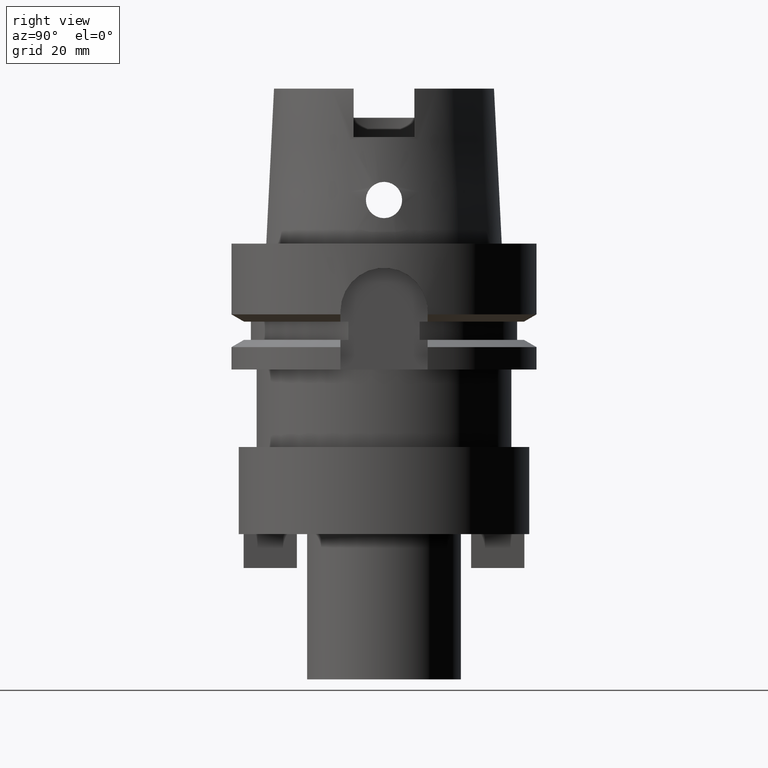
[diagram: clean part render]
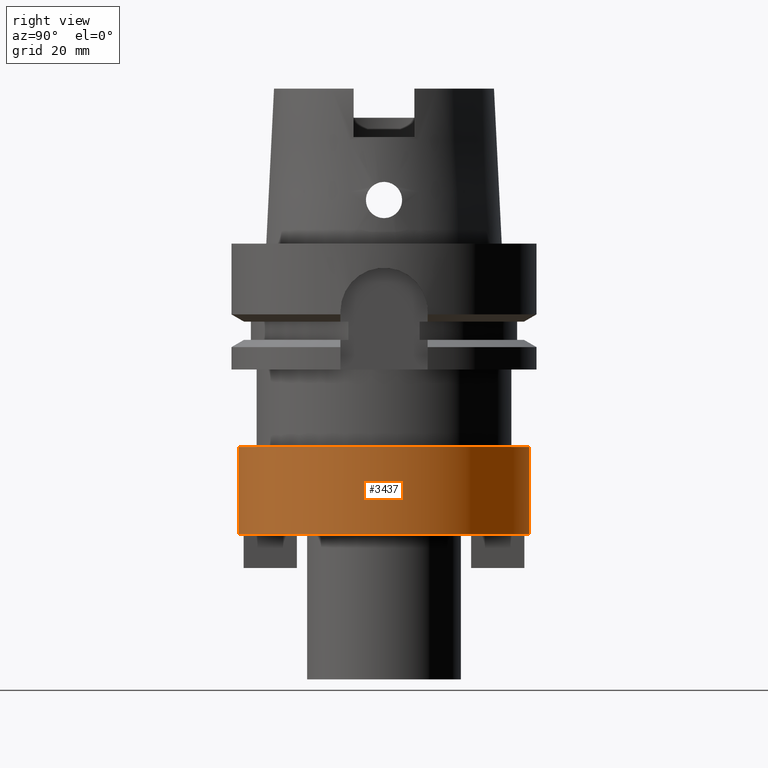
[diagram: same view with one face highlighted and labeled with its STEP entity id]
A machine part, right view. The second image highlights one B-rep face of the part: STEP entity #3437.
In plain terms, the highlighted cylindrical surface (partial cylindrical patch) has radius 30 mm, axis along (0, 0, 1).
Its self-contained STEP definition (entity closure, byte-faithful):
#1326=CARTESIAN_POINT('',(0.E0,0.E0,-4.2E1));
#1327=DIRECTION('',(0.E0,0.E0,-1.E0));
#1328=DIRECTION('',(0.E0,1.E0,0.E0));
#1329=AXIS2_PLACEMENT_3D('',#1326,#1327,#1328);
#1350=DIRECTION('',(0.E0,0.E0,-1.E0));
#1351=VECTOR('',#1350,1.8E1);
#1352=CARTESIAN_POINT('',(0.E0,-3.E1,-4.2E1));
#1353=LINE('',#1352,#1351);
#1357=DIRECTION('',(0.E0,0.E0,-1.E0));
#1358=VECTOR('',#1357,1.8E1);
#1359=CARTESIAN_POINT('',(0.E0,3.E1,-4.2E1));
#1360=LINE('',#1359,#1358);
#1364=CARTESIAN_POINT('',(0.E0,0.E0,-6.E1));
#1365=DIRECTION('',(0.E0,0.E0,1.E0));
#1366=DIRECTION('',(0.E0,-1.E0,0.E0));
#1367=AXIS2_PLACEMENT_3D('',#1364,#1365,#1366);
#2306=CARTESIAN_POINT('',(0.E0,-3.E1,-6.E1));
#2307=CARTESIAN_POINT('',(0.E0,3.E1,-6.E1));
#2308=VERTEX_POINT('',#2306);
#2309=VERTEX_POINT('',#2307);
#2326=CARTESIAN_POINT('',(0.E0,3.E1,-4.2E1));
#2327=VERTEX_POINT('',#2326);
#2328=CARTESIAN_POINT('',(0.E0,-3.E1,-4.2E1));
#2329=VERTEX_POINT('',#2328);
#3425=CARTESIAN_POINT('',(0.E0,0.E0,-9.61E1));
#3426=DIRECTION('',(0.E0,0.E0,1.E0));
#3427=DIRECTION('',(0.E0,1.E0,0.E0));
#3428=AXIS2_PLACEMENT_3D('',#3425,#3426,#3427);
#3429=CYLINDRICAL_SURFACE('',#3428,3.E1);
#3430=ORIENTED_EDGE('',*,*,#3415,.T.);
#3432=ORIENTED_EDGE('',*,*,#3431,.F.);
#3433=ORIENTED_EDGE('',*,*,#3418,.F.);
#3434=ORIENTED_EDGE('',*,*,#3401,.F.);
#3435=EDGE_LOOP('',(#3430,#3432,#3433,#3434));
#3436=FACE_OUTER_BOUND('',#3435,.F.);
#1330=CIRCLE('',#1329,3.E1);
#1368=CIRCLE('',#1367,3.E1);
#3401=EDGE_CURVE('',#2327,#2329,#1330,.T.);
#3415=EDGE_CURVE('',#2327,#2309,#1360,.T.);
#3418=EDGE_CURVE('',#2329,#2308,#1353,.T.);
#3431=EDGE_CURVE('',#2308,#2309,#1368,.T.);
#3437=ADVANCED_FACE('',(#3436),#3429,.T.);